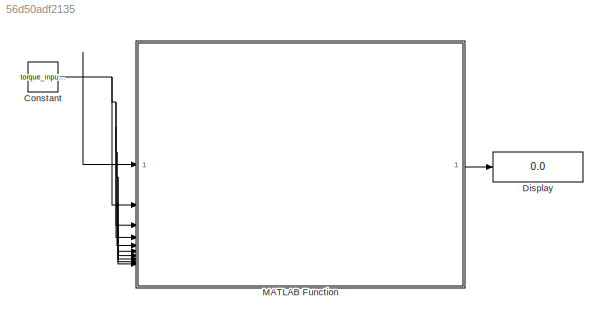
MODEL slx_56d50adf2135
KIND model
CONFIG AbsTol = auto
CONFIG EnableMultiTasking = off
CONFIG FixedStep = auto
CONFIG MaxStep = auto
CONFIG MinStep = auto
CONFIG RelTol = 1e-3
CONFIG SampleTimeConstraint = Unconstrained
CONFIG SolverName = VariableStepAuto
CONFIG StartTime = 0.0
CONFIG StopTime = 10.0
BLOCK [Constant] Constant
  Value = torque_input1_sm
BLOCK [Display] Display
  Decimation = 1
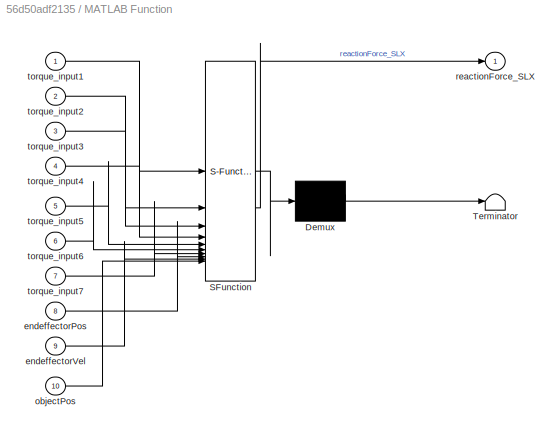
BLOCK [SubSystem] MATLAB Function
  ErrorFcn = Stateflow.Translate.translate
  PermitHierarchicalResolution = ExplicitOnly
  SFBlockType = MATLAB Function
  TreatAsAtomicUnit = on
BLOCK [Demux] MATLAB Function/ Demux 
  Outputs = 1
BLOCK [S-Function] MATLAB Function/ SFunction 
  EnableBusSupport = on
  FunctionName = sf_sfun
  PortCounts = [10 2]
  SFcnIsStateOwnerBlock = off
  SFunctionDeploymentMode = off
  Tag = Stateflow S-Function 14
BLOCK [Terminator] MATLAB Function/ Terminator 
BLOCK [Inport] MATLAB Function/endeffectorPos
  Port = 8
BLOCK [Inport] MATLAB Function/endeffectorVel
  Port = 9
BLOCK [Inport] MATLAB Function/objectPos
  Port = 10
BLOCK [Outport] MATLAB Function/reactionForce_SLX
BLOCK [Inport] MATLAB Function/torque_input1
BLOCK [Inport] MATLAB Function/torque_input2
  Port = 2
BLOCK [Inport] MATLAB Function/torque_input3
  Port = 3
BLOCK [Inport] MATLAB Function/torque_input4
  Port = 4
BLOCK [Inport] MATLAB Function/torque_input5
  Port = 5
BLOCK [Inport] MATLAB Function/torque_input6
  Port = 6
BLOCK [Inport] MATLAB Function/torque_input7
  Port = 7
NET Constant:1 -> MATLAB Function:1, MATLAB Function:10, MATLAB Function:2, MATLAB Function:3, MATLAB Function:4, MATLAB Function:5, MATLAB Function:6, MATLAB Function:7, MATLAB Function:8, MATLAB Function:9
LINE MATLAB Function:1 -> Display:1
note: NET lines group one-source signal fan-out (src -> all destinations, sorted); 1:1 wires keep LINE
CHART MATLAB Function states=1 transitions=1
  STATE_LABEL 'eML_blk_kernel()'
  STATE_LABEL "SCRIPT:\nfunction reactionForce_SLX  = reactionForce(torque_input1, torque_input2, torque_input3, torque_input4, torque_input5, torque_input6, torque_input7, endeffectorPos, endeffectorVel, objectPos)\n    coder.extrinsic('predict_reactionForce');\n    reactionForce_SLX = 0\n    % Create the input array\n    new_data = [torque_input1, torque_input2, torque_input3, torque_input4, torque_input5, torque_i...<+167ch>"
CHART  states=0 transitions=0
